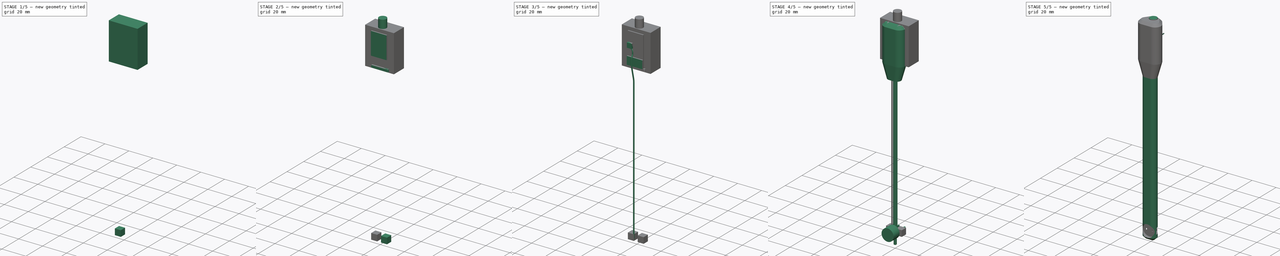
[diagram: build sequence overview — one tinted view per stage of 5, left to right]
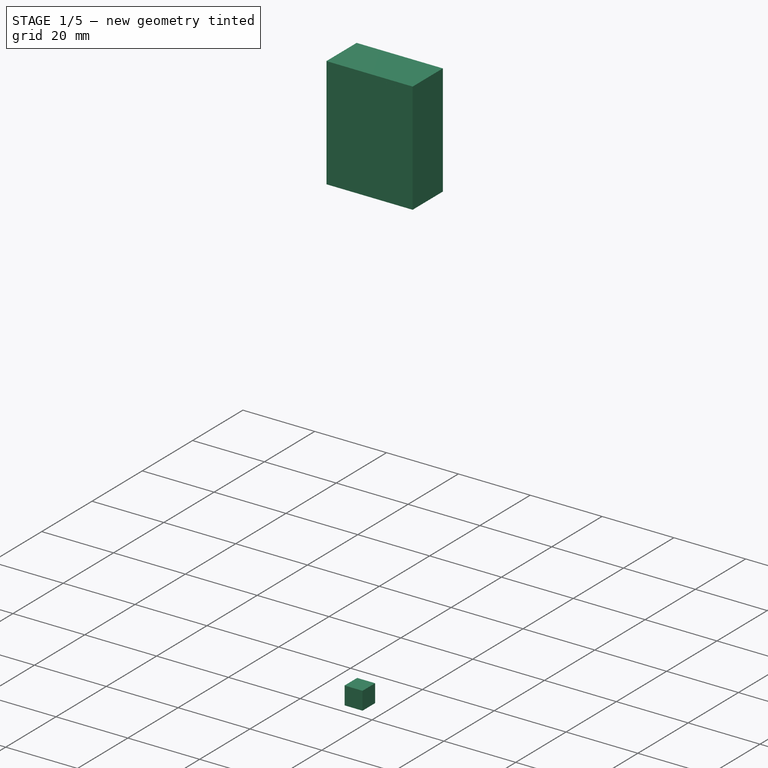
[diagram: stage 1 of 5 — iso view after this stage's code; geometry added in this stage tinted green]
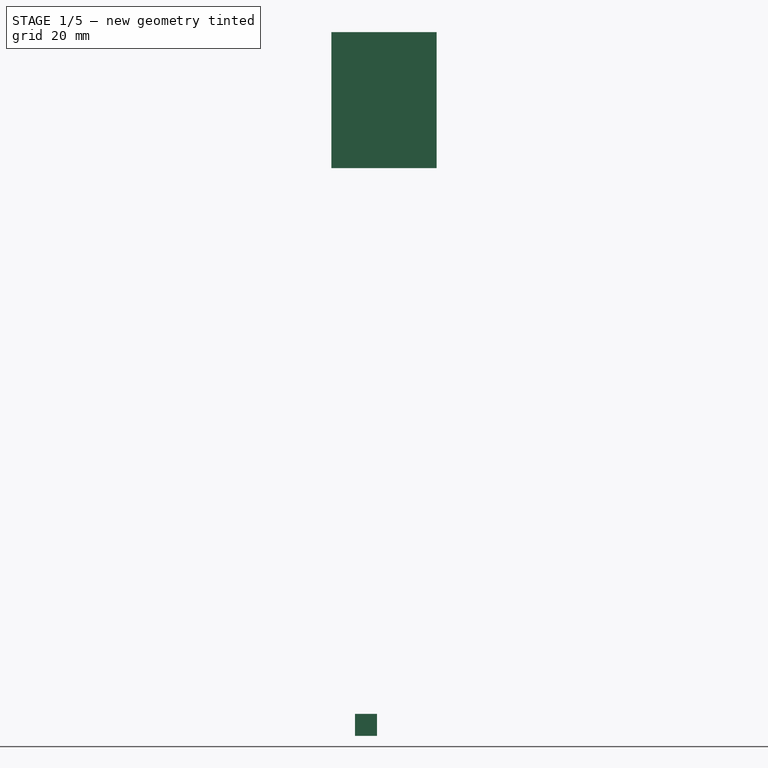
[diagram: stage 1 of 5 — front view after this stage's code; geometry added in this stage tinted green]
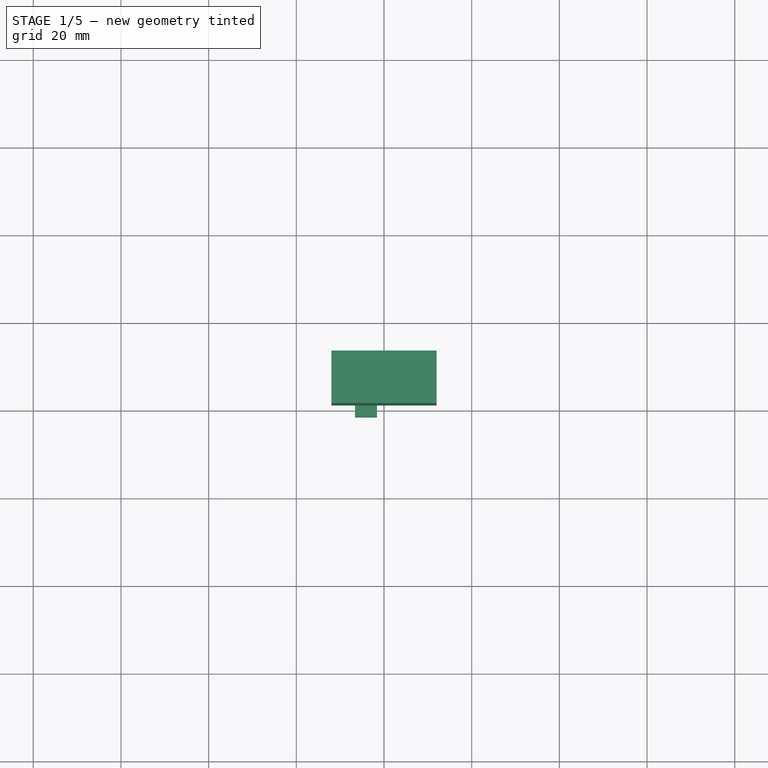
[diagram: stage 1 of 5 — top view after this stage's code; geometry added in this stage tinted green]
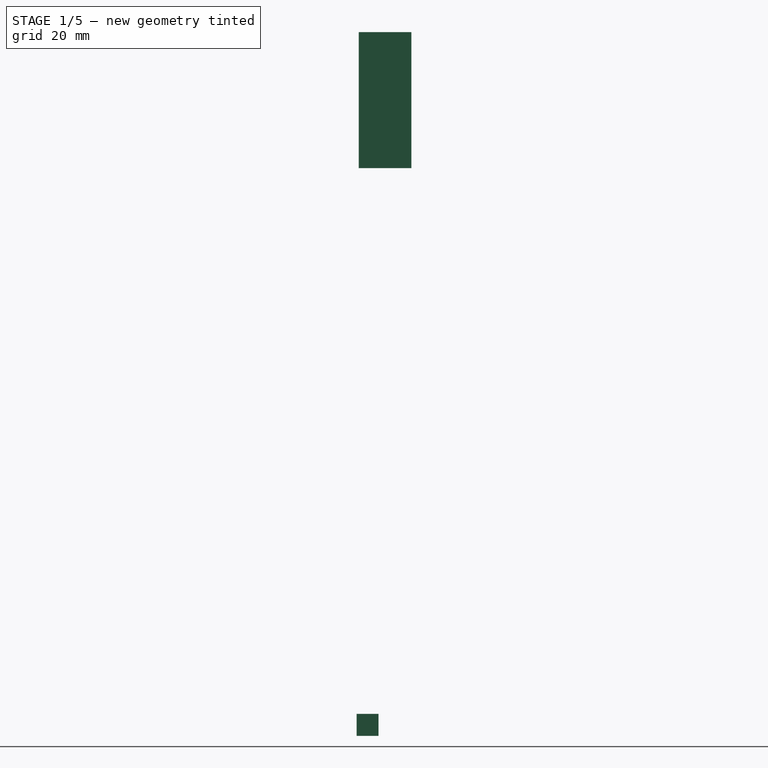
[diagram: stage 1 of 5 — right view after this stage's code; geometry added in this stage tinted green]
FCSTD DOCUMENT  (FreeCAD 0.16R6712 (Git))
Label: pisakUS_pcb_skorupa
License: All rights reserved
LicenseURL: http://en.wikipedia.org/wiki/All_rights_reserved
objects: Part::Feature×22, Sketcher::SketchObject×8, Part::Box×8, Part::MultiFuse×3, PartDesign::Pad×3, Part::Cut×3, Part::FeaturePython×2, Part::Sweep×2, Part::Chamfer×2, Part::MultiCommon×2, Part::Mirroring×1, Part::Loft×1, Part::Compound×1, Part::Fillet×1, Part::Cylinder×1
note: 63 computed .brp shape members not serialized (recipe doc carries the construction recipe); baked Part::Feature solids carry a one-line shape summary decoded from their .brp

FEATURE [Part::Box] Box005  label="wyciecie_nadajnik2"
  Height = 5
  Length = 5
  Placement = pos=(-6.6,-1.5,-61.5) rot=(0,0,1;0rad)
  Width = 5
FEATURE [Part::Feature] Cut001  label="pisakUS2"
  shape: bbox 18.64 x 14.37 x 164 mm, 140 faces (baked)
FEATURE [Part::Box] Box006  label="wyciecie_glowka_gora1"
  Height = 31
  Length = 24
  Placement = pos=(-12,-1,68) rot=(0,0,1;0rad)
  Width = 12
FEATURE [Part::MultiCommon] Common  label="czesc_gorna"
  Shapes = -> [Box006001,Cut001]
FEATURE [Part::Box] Box006002  label="wyciecie_jack001"
  Height = 5
  Length = 6.28
  Placement = pos=(-3.126,-1,94.5) rot=(0,0,1;0rad)
  Width = 4
FEATURE [Part::Feature] Common001  label="czesc_gorna001"
  shape: bbox 18 x 9 x 30 mm, 37 faces (baked)
FEATURE [Part::Feature] Box006002001  label="wyciecie_jack002"
  Placement = pos=(-3.126,-1,94.5) rot=(0,0,1;0rad)
  shape: bbox 6.28 x 4 x 5 mm, 6 faces (baked)
FEATURE [Part::MultiCommon] Common002  label="czesc_dolna_jack"
  Shapes = -> [Common001,Box006002]
FEATURE [Part::Cut] Cut003  label="czesc_gorna002"
  Base = -> Common
  Tool = -> Box006002001
note: 2 file-system paths scrubbed to <path> (originals preserved in the JSON sidecar)
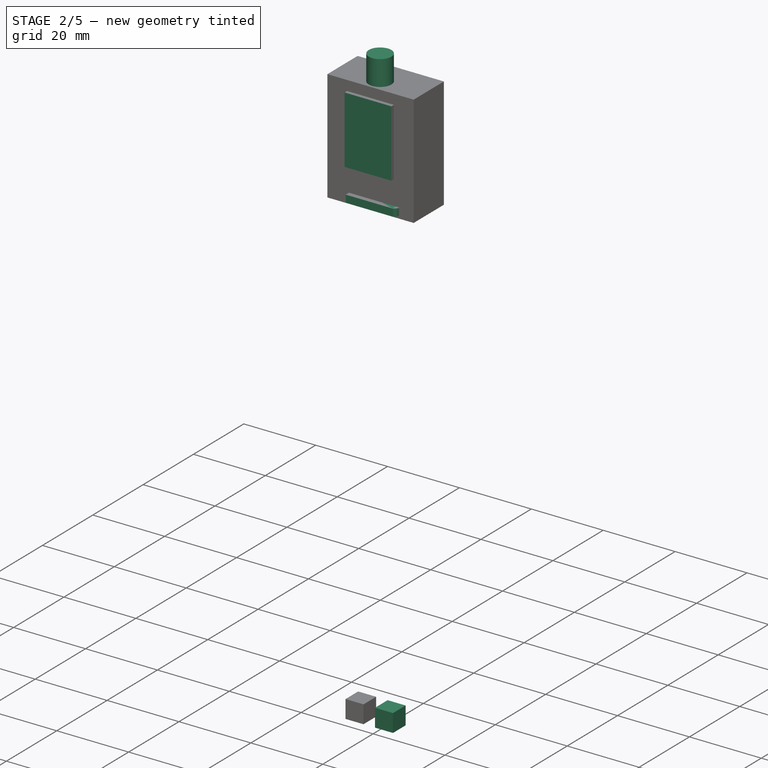
[diagram: stage 2 of 5 — iso view after this stage's code; geometry added in this stage tinted green]
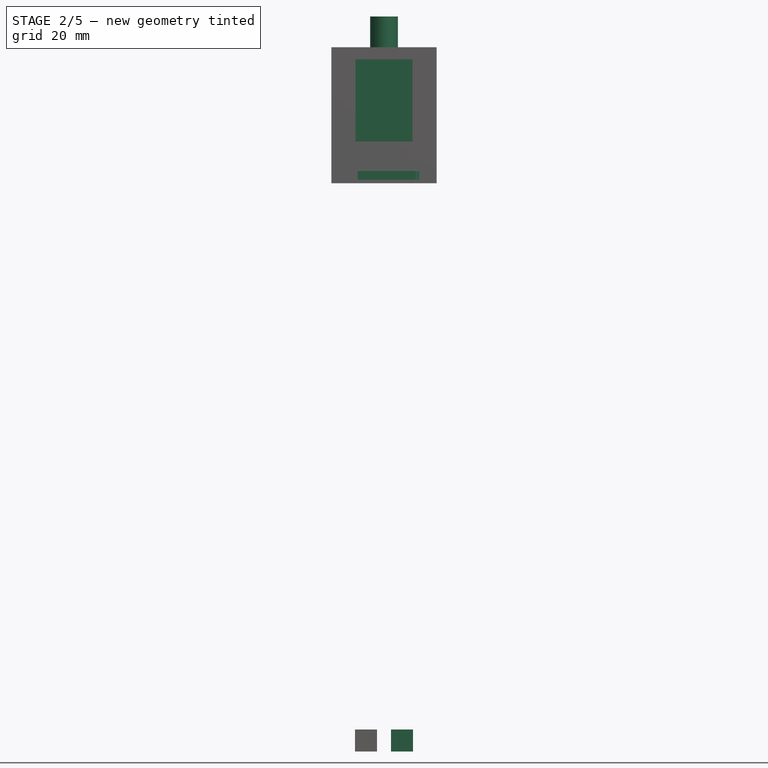
[diagram: stage 2 of 5 — front view after this stage's code; geometry added in this stage tinted green]
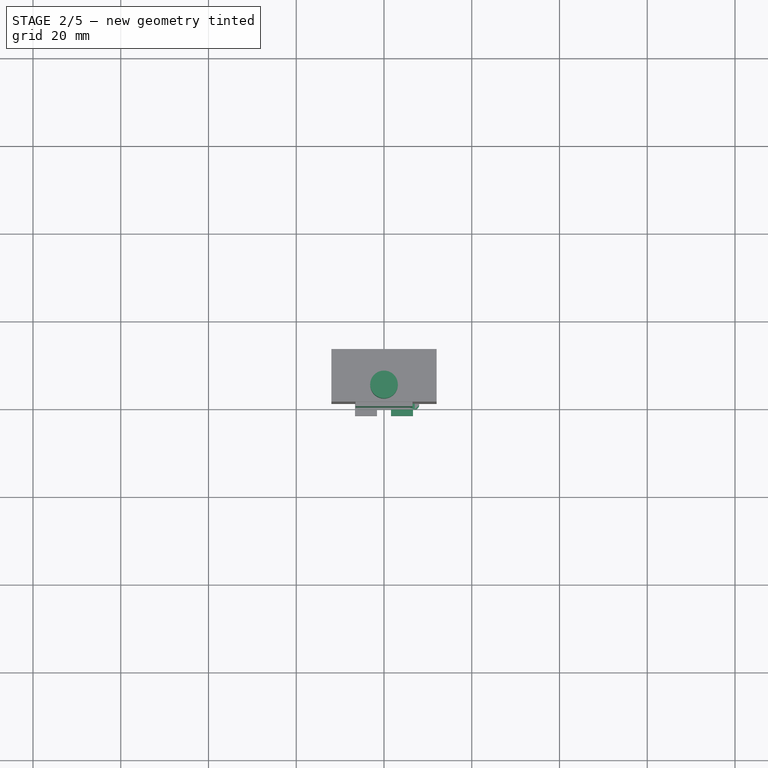
[diagram: stage 2 of 5 — top view after this stage's code; geometry added in this stage tinted green]
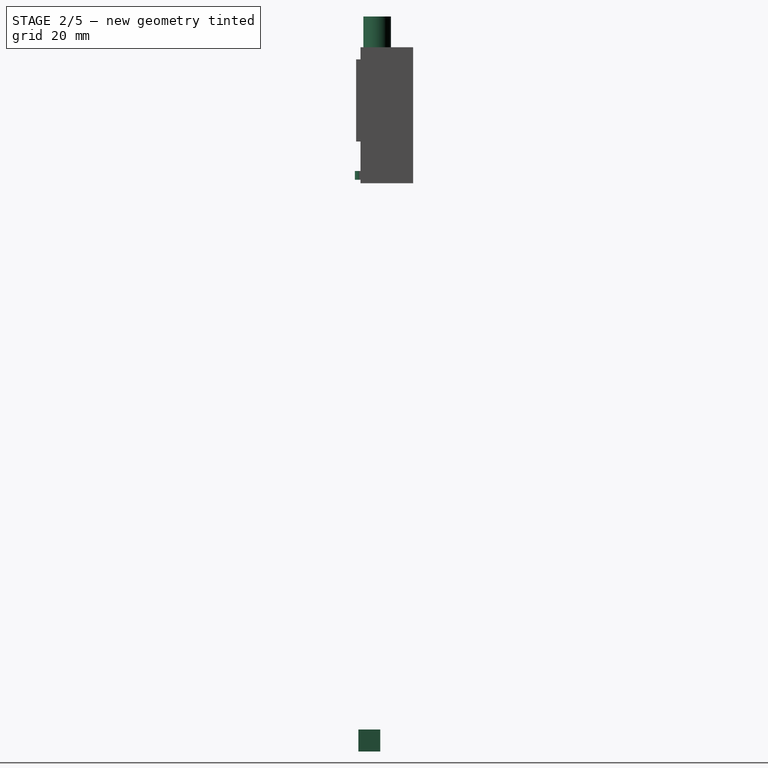
[diagram: stage 2 of 5 — right view after this stage's code; geometry added in this stage tinted green]
FEATURE [Part::Box] Box002  label="wyciecie_przycisk2"
  Height = 2
  Length = 14
  Placement = pos=(-6,-2.3,68.8) rot=(0,0,1;0rad)
  Width = 4.6
FEATURE [Part::Fillet] Fillet  label="wyciecie_przycisk003"
  Base = -> Box002
  Edges = 2 edges r=1: [Edge5,Edge7]
FEATURE [Part::Box] Box003  label="wyciecie_pcb1"
  Height = 18.7
  Length = 13
  Placement = pos=(-6.5,-2,77.53) rot=(0,0,1;0rad)
  Width = 2.95
FEATURE [Part::Cylinder] Cylinder  label="wyciecie_jack"
  Angle = 360
  Height = 10
  Placement = pos=(0,2.8,96) rot=(0,0,1;0rad)
  Radius = 3.15
FEATURE [Sketcher::SketchObject] Sketch007  label="glowka_wyciecie4"
  Placement = pos=(0,0,96.23) rot=(1,0,0;3.14159rad)
  sketch-geometry (4):
    g0: LineSegment StartX=-6.5 StartY=-0.95 StartZ=0 EndX=6.5 EndY=-0.95 EndZ=0
    g1: LineSegment StartX=6.5 StartY=-0.95 StartZ=0 EndX=3.6 EndY=-5.95 EndZ=0
    g2: LineSegment StartX=3.6 StartY=-5.95 StartZ=0 EndX=-3.6 EndY=-5.95 EndZ=0
    g3: LineSegment StartX=-3.6 StartY=-5.95 StartZ=0 EndX=-6.5 EndY=-0.95 EndZ=0
  constraints (12):
    c: Horizontal(g0)
    c: Coincident(g0,g1)
    c: Coincident(g1,g2)
    c: Horizontal(g2)
    c: Coincident(g2,g3)
    c: Coincident(g0,g3)
    c: Symmetric(g0,g0,g-2)
    c: Symmetric(g2,g1,g-2)
    c: DistanceY(g0,g-1) = 0.95
    c: DistanceY(g2,g0) = 5
    c: DistanceX(g0,g0) = 13
    c: DistanceX(g2,g2) = 7.2
FEATURE [PartDesign::Pad] Pad002  label="wyciecie4"
  Length = 16
  Length2 = 100
  Placement = pos=(0,0,96.23) rot=(1,0,0;3.14159rad)
  Sketch = -> Sketch007
  Type = 0
FEATURE [Part::Box] Box004  label="wyciecie_nadajnik1"
  Height = 5
  Length = 5
  Placement = pos=(1.6,-1.5,-61.5) rot=(0,0,1;0rad)
  Width = 5
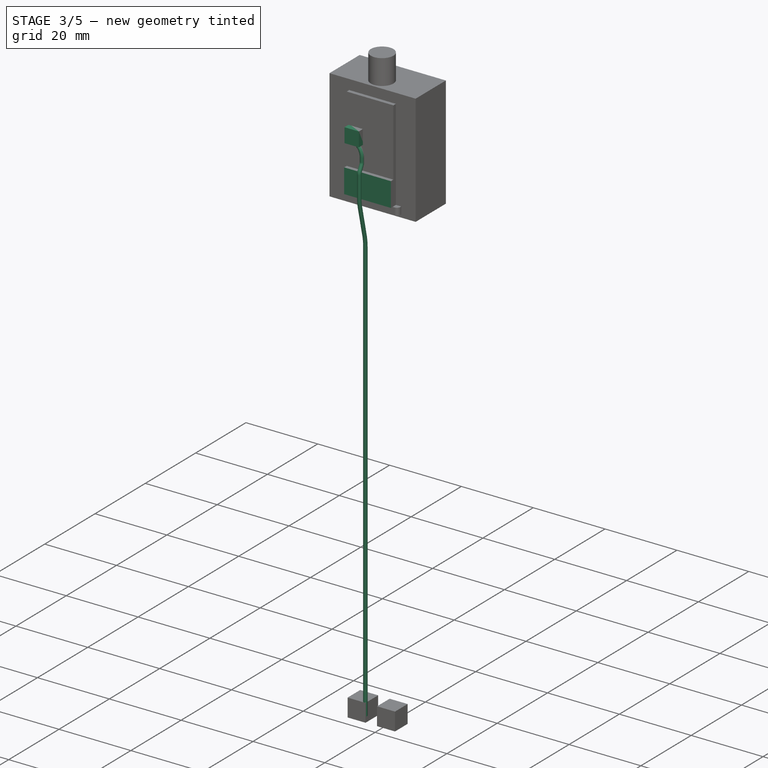
[diagram: stage 3 of 5 — iso view after this stage's code; geometry added in this stage tinted green]
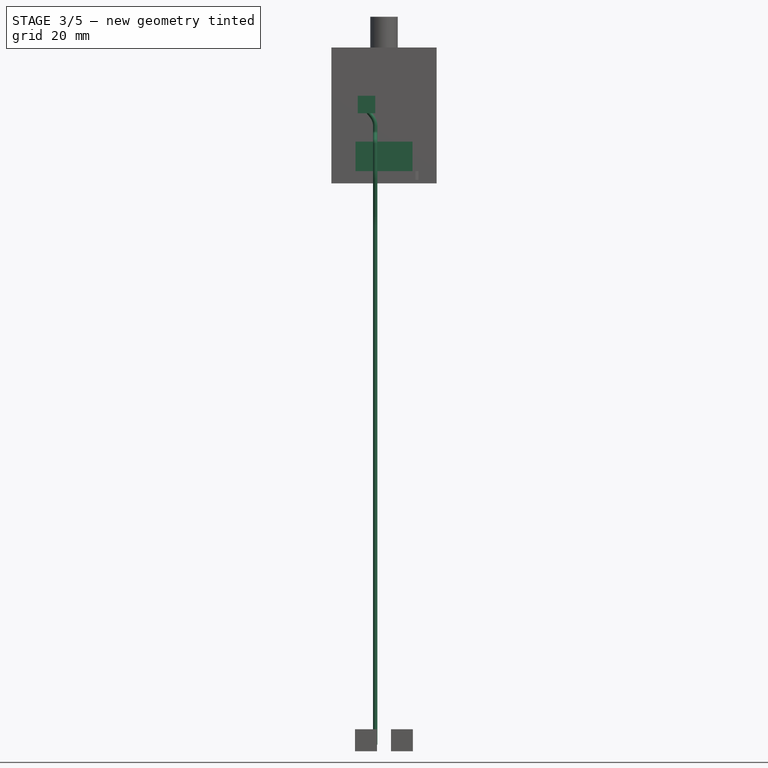
[diagram: stage 3 of 5 — front view after this stage's code; geometry added in this stage tinted green]
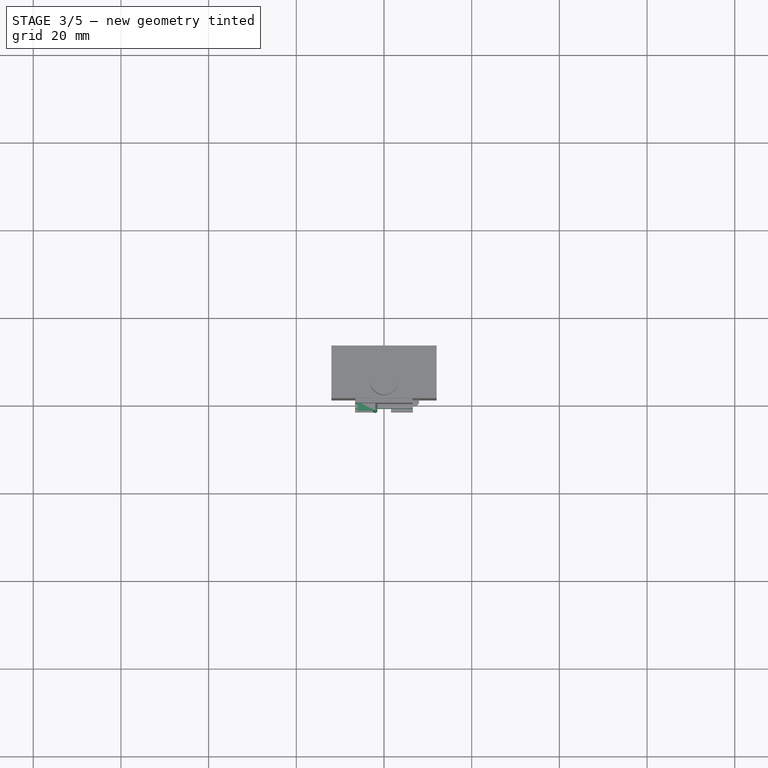
[diagram: stage 3 of 5 — top view after this stage's code; geometry added in this stage tinted green]
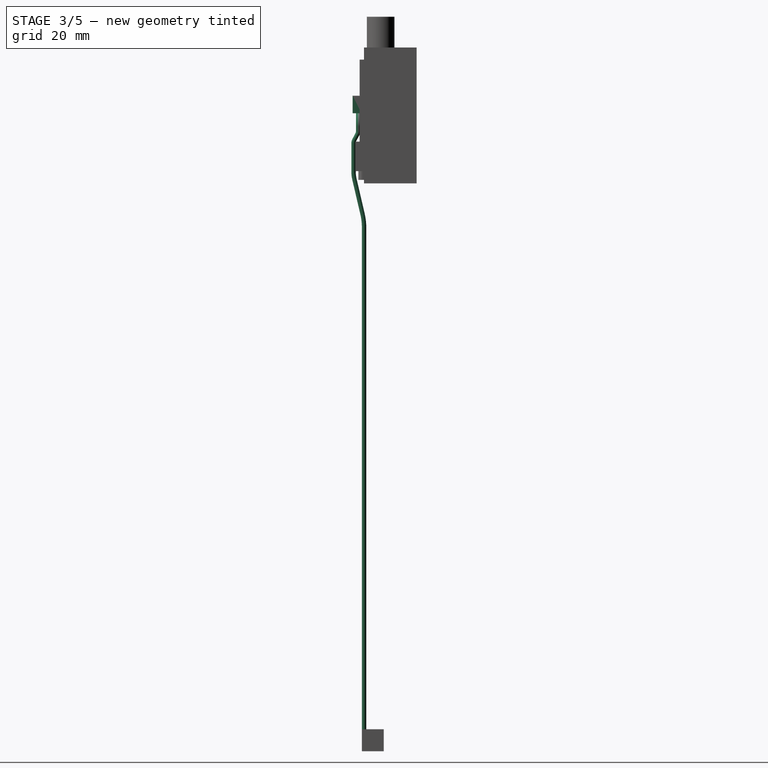
[diagram: stage 3 of 5 — right view after this stage's code; geometry added in this stage tinted green]
FEATURE [Sketcher::SketchObject] Sketch  label="rurka_krzywa"
  Placement = pos=(2,0,0) rot=(0.57735,0.57735,0.57735;2.0944rad)
  sketch-geometry (13):
    g0: LineSegment StartX=-1 StartY=-60 StartZ=0 EndX=-1 EndY=58 EndZ=0
    g1: LineSegment StartX=-1.34686 StartY=61.0179 StartZ=0 EndX=-3.20299 EndY=68.9859 EndZ=0
    g2: LineSegment StartX=-3.4 StartY=70.7 StartZ=0 EndX=-3.4 EndY=77.1 EndZ=0
    g3: LineSegment [constr] StartX=-1 StartY=-60 StartZ=0 EndX=0 EndY=-60 EndZ=0
    g4: ArcOfCircle CenterX=4.15536 CenterY=70.7 CenterZ=0 NormalX=0 NormalY=0 NormalZ=1 Radius=7.55536 StartAngle=3.14159 EndAngle=3.37046
    g5: ArcOfCircle CenterX=-14.3021 CenterY=58 CenterZ=0 NormalX=0 NormalY=0 NormalZ=1 Radius=13.3021 StartAngle=0 EndAngle=0.228866
    g6: LineSegment [constr] StartX=-3.4 StartY=70.7 StartZ=0 EndX=-2.9 EndY=70.7 EndZ=0
    g7: LineSegment [constr] StartX=-2.9 StartY=70.7 StartZ=0 EndX=-2.9 EndY=72.1472 EndZ=0
    g8: LineSegment StartX=-3.18731 StartY=77.9619 StartZ=0 EndX=-2.51046 EndY=79.2498 EndZ=0
    g9: LineSegment StartX=-2.35 StartY=79.9 StartZ=0 EndX=-2.35 EndY=80 EndZ=0
    g10: LineSegment [constr] StartX=-2.35 StartY=80 StartZ=0 EndX=-1.85 EndY=80 EndZ=0
    g11: ArcOfCircle CenterX=-1.54738 CenterY=77.1 CenterZ=0 NormalX=0 NormalY=0 NormalZ=1 Radius=1.85262 StartAngle=2.65771 EndAngle=3.14159
    g12: ArcOfCircle CenterX=-3.74772 CenterY=79.9 CenterZ=0 NormalX=0 NormalY=0 NormalZ=1 Radius=1.39772 StartAngle=5.79931 EndAngle=6.28319
  constraints (31):
    c: Vertical(g0)
    c: Vertical(g2)
    c: DistanceY(g0,g-1) = 60
    c: Coincident(g3,g0)
    c: PointOnObject(g3,g-2)
    c: Horizontal(g3)
    c: DistanceX(g3,g3) = 1
    c: Tangent(g2,g4) = 1.5708
    c: Tangent(g1,g4) = 1.5708
    c: Tangent(g0,g5) = -1.5708
    c: Tangent(g1,g5) = -1.5708
    c: Coincident(g6,g2)
    c: Horizontal(g6)
    c: DistanceX(g6,g6) = 0.5
    c: DistanceX(g2,g-1) = 3.4
    c: Coincident(g7,g6)
    c: Vertical(g7)
    c: DistanceY(g-1,g0) = 58
    c: DistanceY(g-1,g2) = 70.7
    c: Vertical(g9)
    c: Coincident(g10,g9)
    c: Horizontal(g10)
    c: DistanceX(g10,g10) = 0.5
    c: Tangent(g2,g11) = 1.5708
    c: Tangent(g8,g11) = 1.5708
    c: Tangent(g9,g12) = -1.5708
    c: Tangent(g8,g12) = -1.5708
    c: DistanceX(g9,g-1) = 2.35
    c: DistanceY(g2,g2) = 6.4
    c: DistanceY(g9,g9) = 0.1
    c: DistanceY(g-1,g9) = 80
FEATURE [Sketcher::SketchObject] Sketch001  label="rurka_otwor"
  Placement = pos=(0,0,-60) rot=(0,0,1;0rad)
  sketch-geometry (1):
    g0: Circle CenterX=2 CenterY=-1 CenterZ=0 NormalX=0 NormalY=0 NormalZ=1 Radius=0.5
  constraints (3):
    c: DistanceY(g0,g-1) = 1
    c: DistanceX(g-1,g0) = 2
    c: Radius(g0) = 0.5
FEATURE [Part::Box] Box  label="Cube"
  Height = 4
  Length = 4
  Placement = pos=(2,-3.6,84) rot=(0,0,1;0rad)
  Width = 2
FEATURE [Sketcher::SketchObject] Sketch002  label="rurka_krzywa2"
  Placement = pos=(0,-2.35,0) rot=(1,0,0;1.5708rad)
  sketch-geometry (3):
    g0: LineSegment StartX=2 StartY=80 StartZ=0 EndX=2 EndY=81.0187 EndZ=0
    g1: LineSegment StartX=2.83779 StartY=83.3875 StartZ=0 EndX=4.95 EndY=86 EndZ=0
    g2: ArcOfCircle CenterX=5.76763 CenterY=81.0187 CenterZ=0 NormalX=0 NormalY=0 NormalZ=1 Radius=3.76763 StartAngle=2.46169 EndAngle=3.14159
  constraints (7):
    c: Vertical(g0)
    c: DistanceX(g-1,g0) = 2
    c: DistanceX(g-1,g1) = 4.95
    c: DistanceY(g-1,g1) = 86
    c: Tangent(g0,g2) = 1.5708
    c: Tangent(g1,g2) = 1.5708
    c: DistanceY(g-1,g0) = 80
FEATURE [Part::Sweep] Sweep
  Frenet = false
  Sections = -> [Sketch001]
  Solid = true
  Spine = -> Sketch [Edge1,Edge2,Edge3,Edge4,Edge5,Edge6,Edge7,Edge8,Edge9]
  Transition = 1
FEATURE [Sketcher::SketchObject] Sketch003  label="rurka_otwor2"
  Placement = pos=(0,0,80) rot=(0,0,1;0rad)
  sketch-geometry (1):
    g0: Circle CenterX=2 CenterY=-2.35 CenterZ=0 NormalX=0 NormalY=0 NormalZ=1 Radius=0.5
  constraints (3):
    c: DistanceY(g0,g-1) = 2.35
    c: DistanceX(g-1,g0) = 2
    c: Radius(g0) = 0.5
FEATURE [Part::Sweep] Sweep001
  Frenet = false
  Sections = -> [Sketch003]
  Solid = true
  Spine = -> Sketch002 [Edge1,Edge2,Edge3]
  Transition = 1
FEATURE [Part::MultiFuse] Fusion  label="rurka"
  Shapes = -> [Sweep,Sweep001,Box]
FEATURE [Part::Mirroring] Part__Mirroring  label="rurka (Mirror #1)"
  Base = (0,0,0)
  Normal = (1,0,0)
  Source = -> Fusion
FEATURE [Part::Box] Box001  label="wyciecie_przycisk1"
  Height = 6.73
  Length = 13
  Placement = pos=(-6.5,-3,70.8) rot=(0,0,1;0rad)
  Width = 6
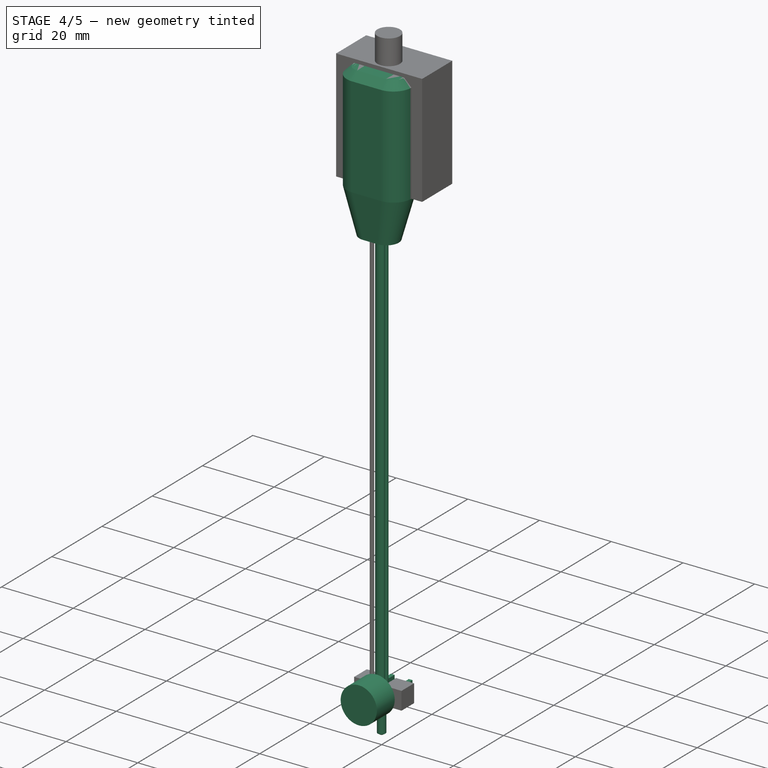
[diagram: stage 4 of 5 — iso view after this stage's code; geometry added in this stage tinted green]
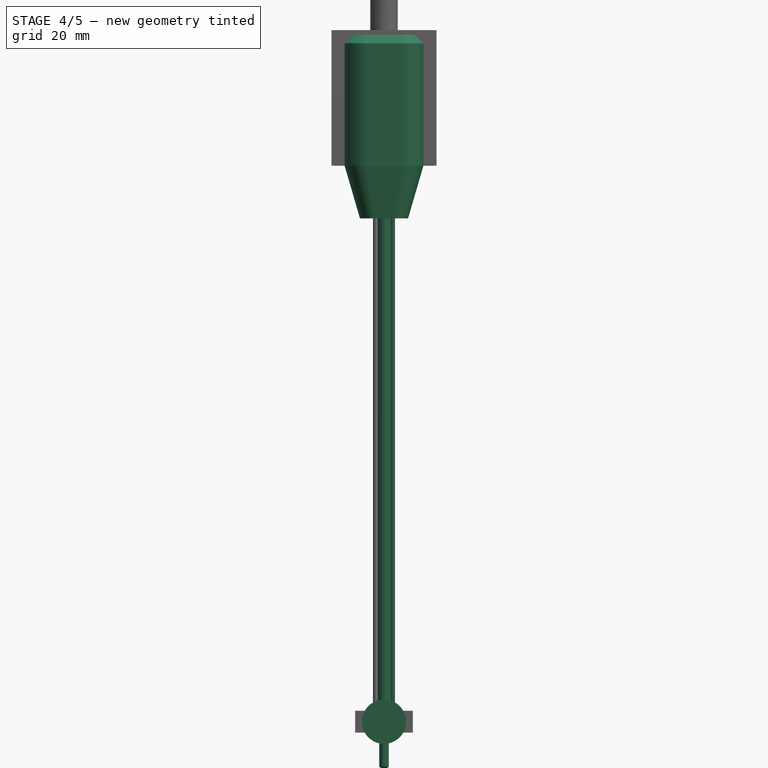
[diagram: stage 4 of 5 — front view after this stage's code; geometry added in this stage tinted green]
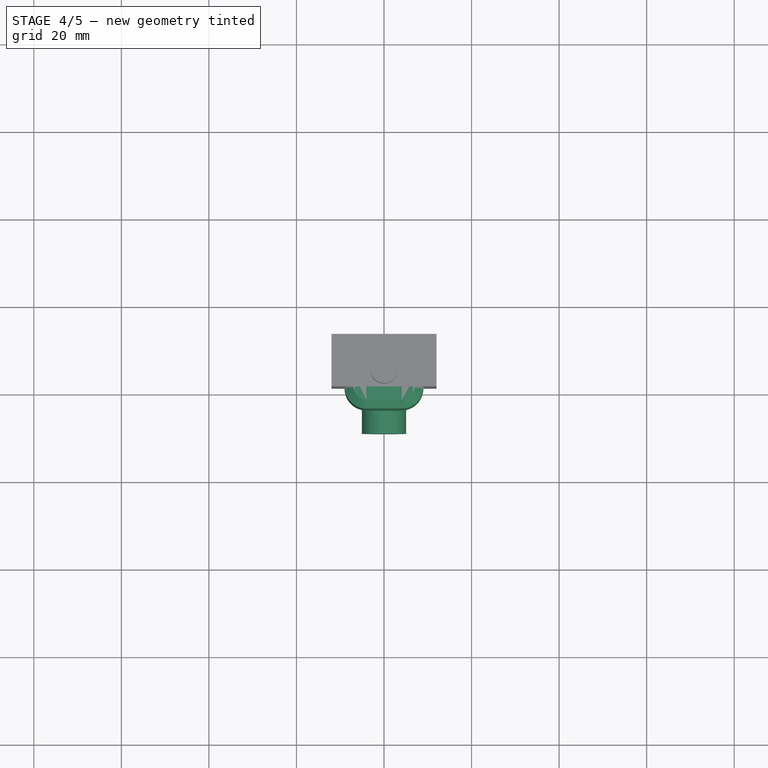
[diagram: stage 4 of 5 — top view after this stage's code; geometry added in this stage tinted green]
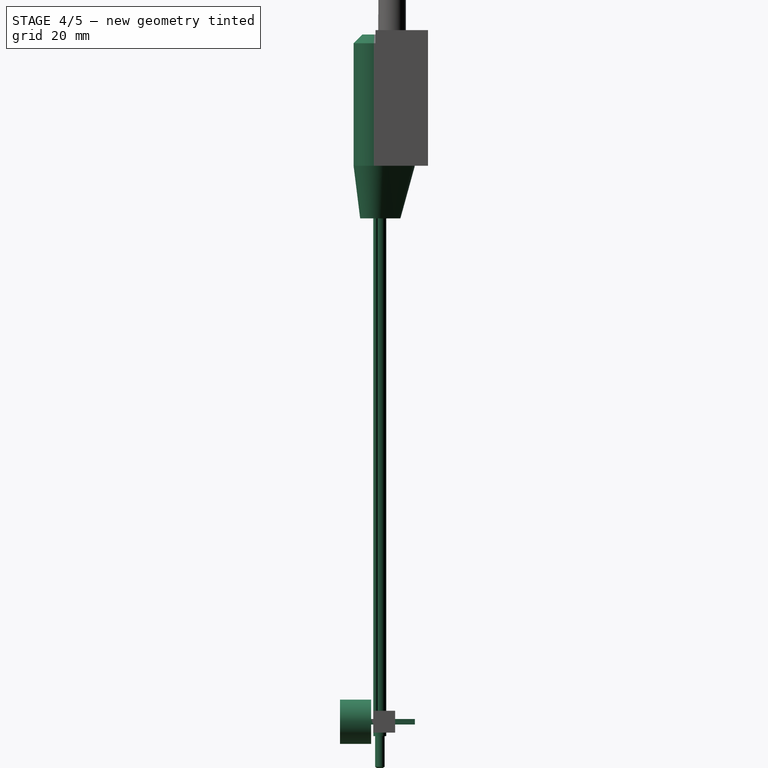
[diagram: stage 4 of 5 — right view after this stage's code; geometry added in this stage tinted green]
FEATURE [Part::FeaturePython] MA40S4S_grubas_01  # a2plus imported part (geometry in sourceFile) (typed FeaturePython)
  Placement = pos=(0,-2,-59) rot=(1,0,0;1.5708rad)
  fixedPosition = false
  sourceFile = <path>
  timeLastImport = 1.53199e+09
  updateColors = true
FEATURE [Part::FeaturePython] wklad_075_01  # a2plus imported part (geometry in sourceFile) (typed FeaturePython)
  Placement = pos=(0,0,0) rot=(1,0,0;1.5708rad)
  fixedPosition = true
  sourceFile = <path>
  timeLastImport = 1.532e+09
  updateColors = true
FEATURE [Sketcher::SketchObject] Sketch005  label="gora_trojkat"
  Placement = pos=(0,0,56) rot=(1,0,0;3.14159rad)
  sketch-geometry (8):
    g0: LineSegment StartX=-2 StartY=4.5 StartZ=0 EndX=2 EndY=4.5 EndZ=0
    g1: LineSegment StartX=4.7021 StartY=-1.22456 StartZ=0 EndX=3.01091 EndY=-3.27879 EndZ=0
    g2: LineSegment StartX=-3.01091 StartY=-3.27879 StartZ=0 EndX=-4.7021 EndY=-1.22456 EndZ=0
    g3: ArcOfCircle CenterX=-2 CenterY=1 CenterZ=0 NormalX=0 NormalY=0 NormalZ=1 Radius=3.5 StartAngle=1.5708 EndAngle=3.83036
    g4: ArcOfCircle CenterX=2 CenterY=1 CenterZ=0 NormalX=0 NormalY=0 NormalZ=1 Radius=3.5 StartAngle=5.59442 EndAngle=7.85398
    g5: ArcOfCircle CenterX=0 CenterY=-0.8 CenterZ=0 NormalX=0 NormalY=0 NormalZ=1 Radius=3.9 StartAngle=3.83036 EndAngle=5.59442
    g6: LineSegment [constr] StartX=-5.5 StartY=1 StartZ=0 EndX=5.5 EndY=1 EndZ=0
    g7: GeomPoint [constr] X=0 Y=-4.7 Z=0
  constraints (20):
    c: Horizontal(g0)
    c: Tangent(g2,g3) = 1.5708
    c: Tangent(g0,g3) = 1.5708
    c: Tangent(g0,g4) = 1.5708
    c: Tangent(g1,g4) = 1.5708
    c: Tangent(g2,g5) = 1.5708
    c: Tangent(g1,g5) = 1.5708
    c: Symmetric(g3,g4,g-2)
    c: DistanceX(g3,g4) = 4
    c: Equal(g1,g2)
    c: DistanceY(g5,g4) = 1.8
    c: DistanceY(g-1,g3) = 1
    c: DistanceY(g3,g0) = 3.5
    c: Horizontal(g6)
    c: PointOnObject(g4,g6)
    c: Symmetric(g6,g6,g-2)
    c: DistanceX(g6,g6) = 11
    c: PointOnObject(g7,g5)
    c: PointOnObject(g7,g-2)
    c: DistanceY(g7,g0) = 9.2
FEATURE [Sketcher::SketchObject] Sketch006  label="glowka"
  Placement = pos=(0,0,68) rot=(1,0,0;3.14159rad)
  sketch-geometry (8):
    g0: LineSegment StartX=-4 StartY=6 StartZ=0 EndX=4 EndY=6 EndZ=0
    g1: LineSegment StartX=8.06199 StartY=-1.91552 StartZ=0 EndX=5.84926 EndY=-4.99835 EndZ=0
    g2: LineSegment StartX=-5.84926 StartY=-4.99835 StartZ=0 EndX=-8.06199 EndY=-1.91552 EndZ=0
    g3: ArcOfCircle CenterX=-4 CenterY=1 CenterZ=0 NormalX=0 NormalY=0 NormalZ=1 Radius=5 StartAngle=1.5708 EndAngle=3.76414
    g4: ArcOfCircle CenterX=4 CenterY=1 CenterZ=0 NormalX=0 NormalY=0 NormalZ=1 Radius=5 StartAngle=5.66064 EndAngle=7.85398
    g5: ArcOfCircle CenterX=0 CenterY=-0.8 CenterZ=0 NormalX=0 NormalY=0 NormalZ=1 Radius=7.2 StartAngle=3.76414 EndAngle=5.66064
    g6: LineSegment [constr] StartX=-5.5 StartY=1 StartZ=0 EndX=5.5 EndY=1 EndZ=0
    g7: GeomPoint [constr] X=0 Y=-8 Z=0
  constraints (20):
    c: Horizontal(g0)
    c: Tangent(g2,g3) = 1.5708
    c: Tangent(g0,g3) = 1.5708
    c: Tangent(g0,g4) = 1.5708
    c: Tangent(g1,g4) = 1.5708
    c: Tangent(g2,g5) = 1.5708
    c: Tangent(g1,g5) = 1.5708
    c: Symmetric(g3,g4,g-2)
    c: DistanceX(g3,g4) = 8
    c: Equal(g1,g2)
    c: DistanceY(g5,g4) = 1.8
    c: DistanceY(g-1,g3) = 1
    c: DistanceY(g3,g0) = 5
    c: Horizontal(g6)
    c: PointOnObject(g4,g6)
    c: Symmetric(g6,g6,g-2)
    c: DistanceX(g6,g6) = 11
    c: PointOnObject(g7,g5)
    c: PointOnObject(g7,g-2)
    c: DistanceY(g7,g0) = 14
FEATURE [PartDesign::Pad] Pad001  label="glowka001"
  Length = 30
  Length2 = 100
  Placement = pos=(0,0,68) rot=(1,0,0;3.14159rad)
  Reversed = true
  Sketch = -> Sketch006
  Type = 0
FEATURE [Part::Loft] Loft
  Closed = false
  Ruled = false
  Sections = -> [Sketch006,Sketch005]
  Solid = true
FEATURE [Part::Chamfer] Chamfer001  label="glowka002"
  Base = -> Pad001
  Edges = 6 edges r=2: [Edge4,Edge7,Edge10,Edge13,Edge16,Edge18]
FEATURE [Part::MultiFuse] Fusion002  label="wnetrze_pisakUS"
  Shapes = -> [Box005,Box004,Pad002,Cylinder,Box003,Fillet,Box001,MA40S4S_grubas_01,wklad_075_01,Part__Mirroring,Fusion]
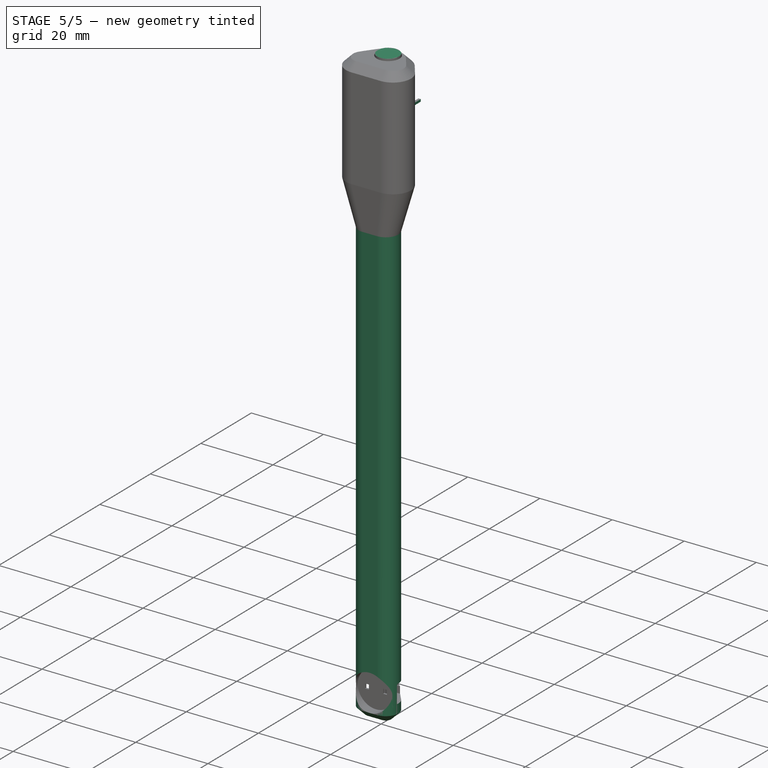
[diagram: stage 5 of 5 — iso view after this stage's code; geometry added in this stage tinted green]
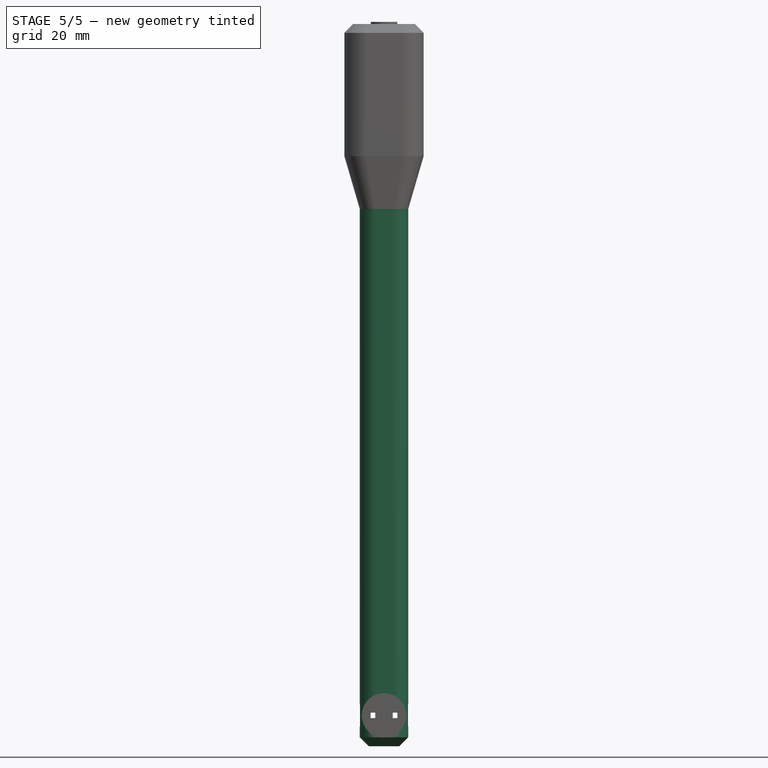
[diagram: stage 5 of 5 — front view after this stage's code; geometry added in this stage tinted green]
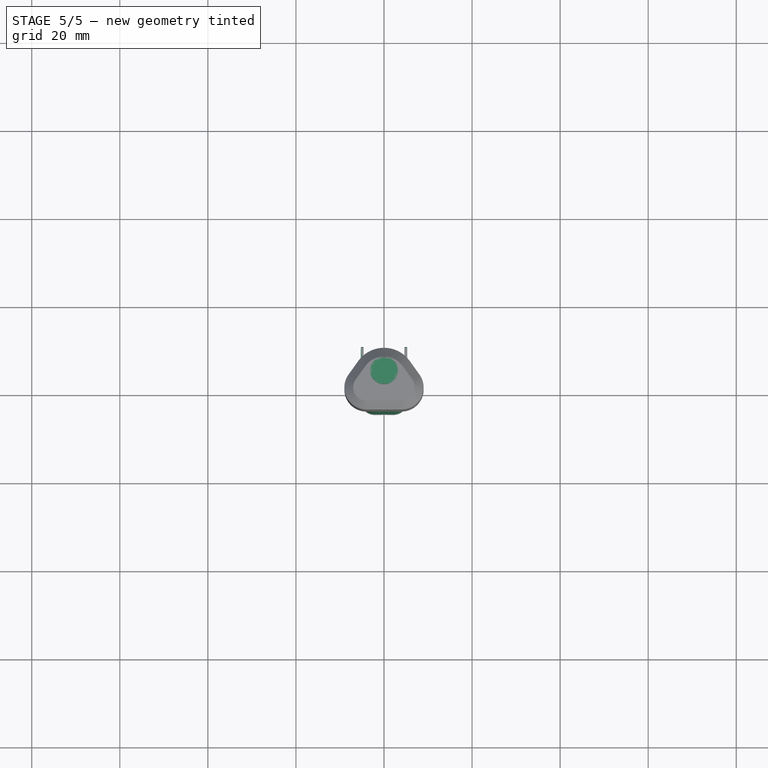
[diagram: stage 5 of 5 — top view after this stage's code; geometry added in this stage tinted green]
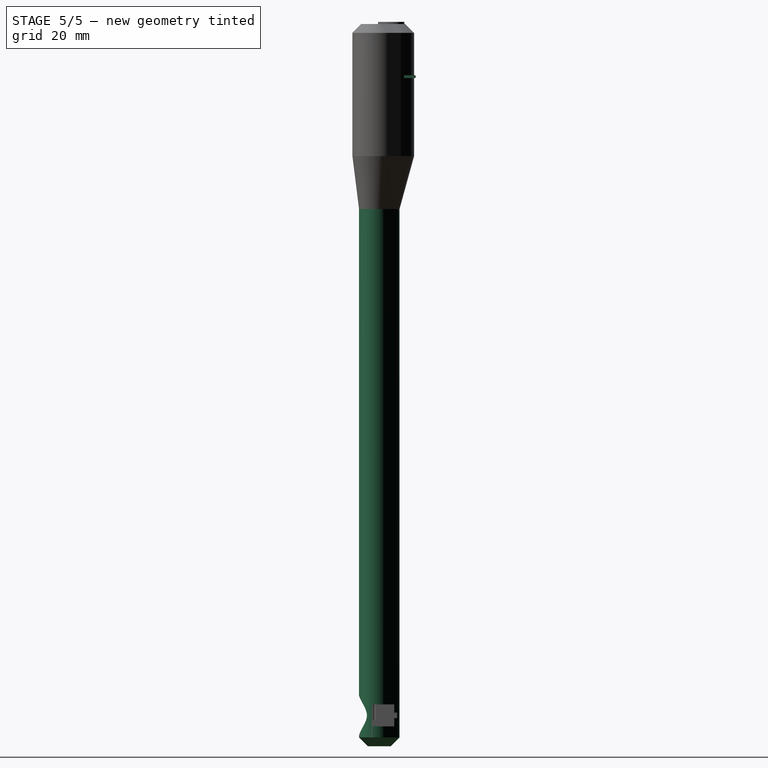
[diagram: stage 5 of 5 — right view after this stage's code; geometry added in this stage tinted green]
FEATURE [Sketcher::SketchObject] Sketch004
  Placement = pos=(0,0,-66) rot=(1,0,0;3.14159rad)
  sketch-geometry (8):
    g0: LineSegment StartX=-2 StartY=4.5 StartZ=0 EndX=2 EndY=4.5 EndZ=0
    g1: LineSegment StartX=4.7021 StartY=-1.22456 StartZ=0 EndX=3.01091 EndY=-3.27879 EndZ=0
    g2: LineSegment StartX=-3.01091 StartY=-3.27879 StartZ=0 EndX=-4.7021 EndY=-1.22456 EndZ=0
    g3: ArcOfCircle CenterX=-2 CenterY=1 CenterZ=0 NormalX=0 NormalY=0 NormalZ=1 Radius=3.5 StartAngle=1.5708 EndAngle=3.83036
    g4: ArcOfCircle CenterX=2 CenterY=1 CenterZ=0 NormalX=0 NormalY=0 NormalZ=1 Radius=3.5 StartAngle=5.59442 EndAngle=7.85398
    g5: ArcOfCircle CenterX=0 CenterY=-0.8 CenterZ=0 NormalX=0 NormalY=0 NormalZ=1 Radius=3.9 StartAngle=3.83036 EndAngle=5.59442
    g6: LineSegment [constr] StartX=-5.5 StartY=1 StartZ=0 EndX=5.5 EndY=1 EndZ=0
    g7: GeomPoint [constr] X=0 Y=-4.7 Z=0
  constraints (20):
    c: Horizontal(g0)
    c: Tangent(g2,g3) = 1.5708
    c: Tangent(g0,g3) = 1.5708
    c: Tangent(g0,g4) = 1.5708
    c: Tangent(g1,g4) = 1.5708
    c: Tangent(g2,g5) = 1.5708
    c: Tangent(g1,g5) = 1.5708
    c: Symmetric(g3,g4,g-2)
    c: DistanceX(g3,g4) = 4
    c: Equal(g1,g2)
    c: DistanceY(g5,g4) = 1.8
    c: DistanceY(g-1,g3) = 1
    c: DistanceY(g3,g0) = 3.5
    c: Horizontal(g6)
    c: PointOnObject(g4,g6)
    c: Symmetric(g6,g6,g-2)
    c: DistanceX(g6,g6) = 11
    c: PointOnObject(g7,g5)
    c: PointOnObject(g7,g-2)
    c: DistanceY(g7,g0) = 9.2
FEATURE [PartDesign::Pad] Pad
  Length = 122
  Length2 = 120
  Placement = pos=(0,0,-66) rot=(1,0,0;3.14159rad)
  Reversed = true
  Sketch = -> Sketch004
  Type = 0
FEATURE [Part::Chamfer] Chamfer  label="trzon"
  Base = -> Pad
  Edges = 6 edges r=2: [Edge3,Edge6,Edge9,Edge12,Edge15,Edge17]
FEATURE [Part::Feature] Part__Feature018  label="SOLID004"
  Placement = pos=(4.572,-8.636,1.65) rot=(0,0,-1;1.5708rad)
  shape: bbox 0.85 x 1.55 x 0.45 mm, 28 faces (baked)
FEATURE [Part::Feature] Part__Feature019  label="COMPOUND013"
  Placement = pos=(-3.25,-22.582,-1.05) rot=(0,0,1;3.14159rad)
  shape: bbox 13.03 x 2.3 x 3.8 mm, 9 faces (baked)
FEATURE [Part::Feature] Part__Feature020  label="COMPOUND014"
  Placement = pos=(-3.25,-22.582,-1.05) rot=(0,0,1;3.14159rad)
  shape: bbox 12.8 x 10 x 5.8 mm, 68 faces (baked)
FEATURE [Part::Feature] Part__Feature021  label="COMPOUND015"
  Placement = pos=(-3.25,-22.582,-1.05) rot=(0,0,1;3.14159rad)
  shape: bbox 1.2 x 2 x 2.9 mm, 6 faces (baked)
FEATURE [Part::Feature] Part__Feature022  label="LED_0604"
  Placement = pos=(-2.54,-18.796,1.65) rot=(0,0,-1;1.5708rad)
FEATURE [Part::Feature] Part__Feature023  label="COMPOUND016"
  Placement = pos=(0,0,1.65) rot=(0,0,1;0rad)
  shape: bbox 7 x 12 x 6 mm, 6 faces (baked)
FEATURE [Part::Feature] Part__Feature024  label="COMPOUND017"
  Placement = pos=(0,0,1.65) rot=(0,0,1;0rad)
  shape: bbox 1 x 1 x 1.1 mm, 3 faces (baked)
FEATURE [Part::Feature] Part__Feature025  label="COMPOUND018"
  Placement = pos=(0,0,1.65) rot=(0,0,1;0rad)
  shape: bbox 1 x 1 x 1.1 mm, 3 faces (baked)
FEATURE [Part::Feature] Part__Feature026  label="COMPOUND019"
  Placement = pos=(0,0,1.65) rot=(0,0,1;0rad)
  shape: bbox 1.2 x 1.05 x 0.4 mm, 6 faces (baked)
FEATURE [Part::Feature] Part__Feature027  label="COMPOUND020"
  Placement = pos=(0,0,1.65) rot=(0,0,1;0rad)
  shape: bbox 1.05 x 1.2 x 0.4 mm, 6 faces (baked)
FEATURE [Part::Feature] Part__Feature028  label="COMPOUND021"
  Placement = pos=(0,0,1.65) rot=(0,0,1;0rad)
  shape: bbox 1.05 x 1.2 x 0.4 mm, 6 faces (baked)
FEATURE [Part::Feature] Part__Feature029  label="COMPOUND022"
  Placement = pos=(0,0,1.65) rot=(0,0,1;0rad)
  shape: bbox 1.05 x 1.2 x 0.4 mm, 6 faces (baked)
FEATURE [Part::Feature] Part__Feature030  label="COMPOUND023"
  Placement = pos=(0,0,1.65) rot=(0,0,1;0rad)
  shape: bbox 1.05 x 1.2 x 0.4 mm, 6 faces (baked)
FEATURE [Part::Feature] Part__Feature031  label="COMPOUND024"
  Placement = pos=(0,0,1.65) rot=(0,0,1;0rad)
  shape: bbox 6 x 2.5 x 6 mm, 3 faces (baked)
FEATURE [Part::Feature] Part__Feature032  label="SOLID005"
  Placement = pos=(-4.572,-8.636,1.65) rot=(0,0,1;1.5708rad)
  shape: bbox 0.85 x 1.55 x 0.45 mm, 28 faces (baked)
FEATURE [Part::Feature] Part__Feature033  label="SOLID006"
  Placement = pos=(4.953,-12.446,1.65) rot=(0,0,1;0rad)
  shape: bbox 2.54 x 2.54 x 11.54 mm, 28 faces (baked)
FEATURE [Part::Feature] Part__Feature034  label="SOLID007"
  Placement = pos=(-4.953,-12.446,1.65) rot=(0,0,1;0rad)
  shape: bbox 2.54 x 2.54 x 11.54 mm, 28 faces (baked)
FEATURE [Part::Feature] Part__Feature035  label="COMPOUND025"
  shape: bbox 12.7 x 18.67 x 1.6 mm, 10 faces (baked)
FEATURE [Part::Compound] Compound001  label="pisakUS_pcb3"
  Links = -> [Part__Feature018,Part__Feature033,Part__Feature034,Part__Feature035,Part__Feature022,Part__Feature023,Part__Feature025,Part__Feature024,Part__Feature026,Part__Feature028,Part__Feature030,Part__Feature031,Part__Feature027,Part__Feature029,Part__Feature032,Part__Feature020,Part__Feature021,Part__Feature019]
  Placement = pos=(0,-1.85,98.5) rot=(0,0.707107,0.707107;3.14159rad)
FEATURE [Part::MultiFuse] Fusion001  label="skorupa_pisakUS"
  Shapes = -> [Chamfer,Loft,Chamfer001]
FEATURE [Part::Cut] Cut  label="pisakUS1"
  Base = -> Fusion001
  Tool = -> Fusion002
FEATURE [Part::Feature] Box006001  label="wyciecie_glowka_gora2"
  Placement = pos=(-12,-1,68) rot=(0,0,1;0rad)
  shape: bbox 24 x 12 x 31 mm, 6 faces (baked)
FEATURE [Part::Cut] Cut002  label="czesc_dolna"
  Base = -> Cut
  Tool = -> Box006
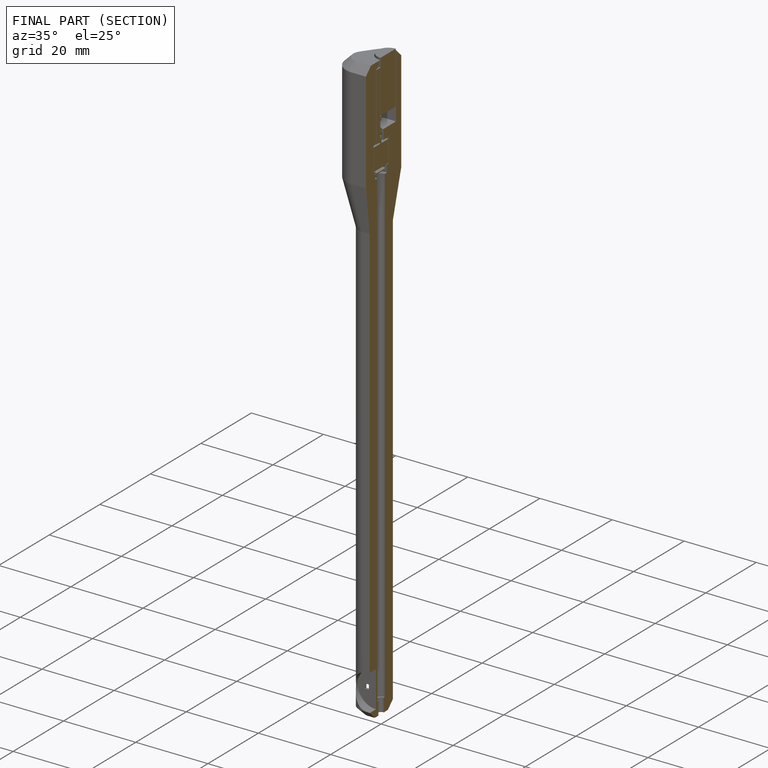
[diagram: finished part — half-section view (interior)]
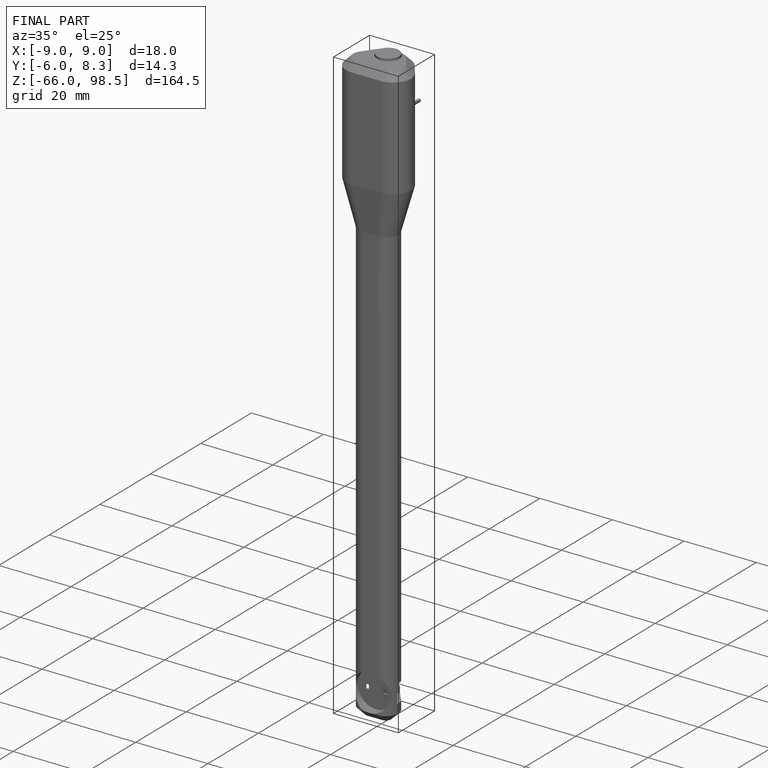
[diagram: finished part — iso view with bounding-box wireframe]
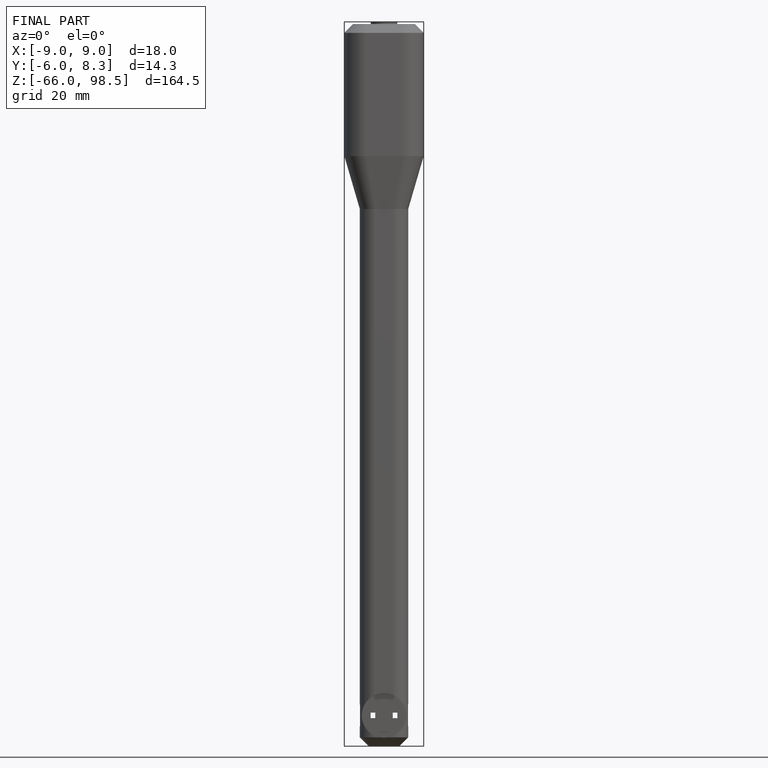
[diagram: finished part — front view with bounding-box wireframe]
